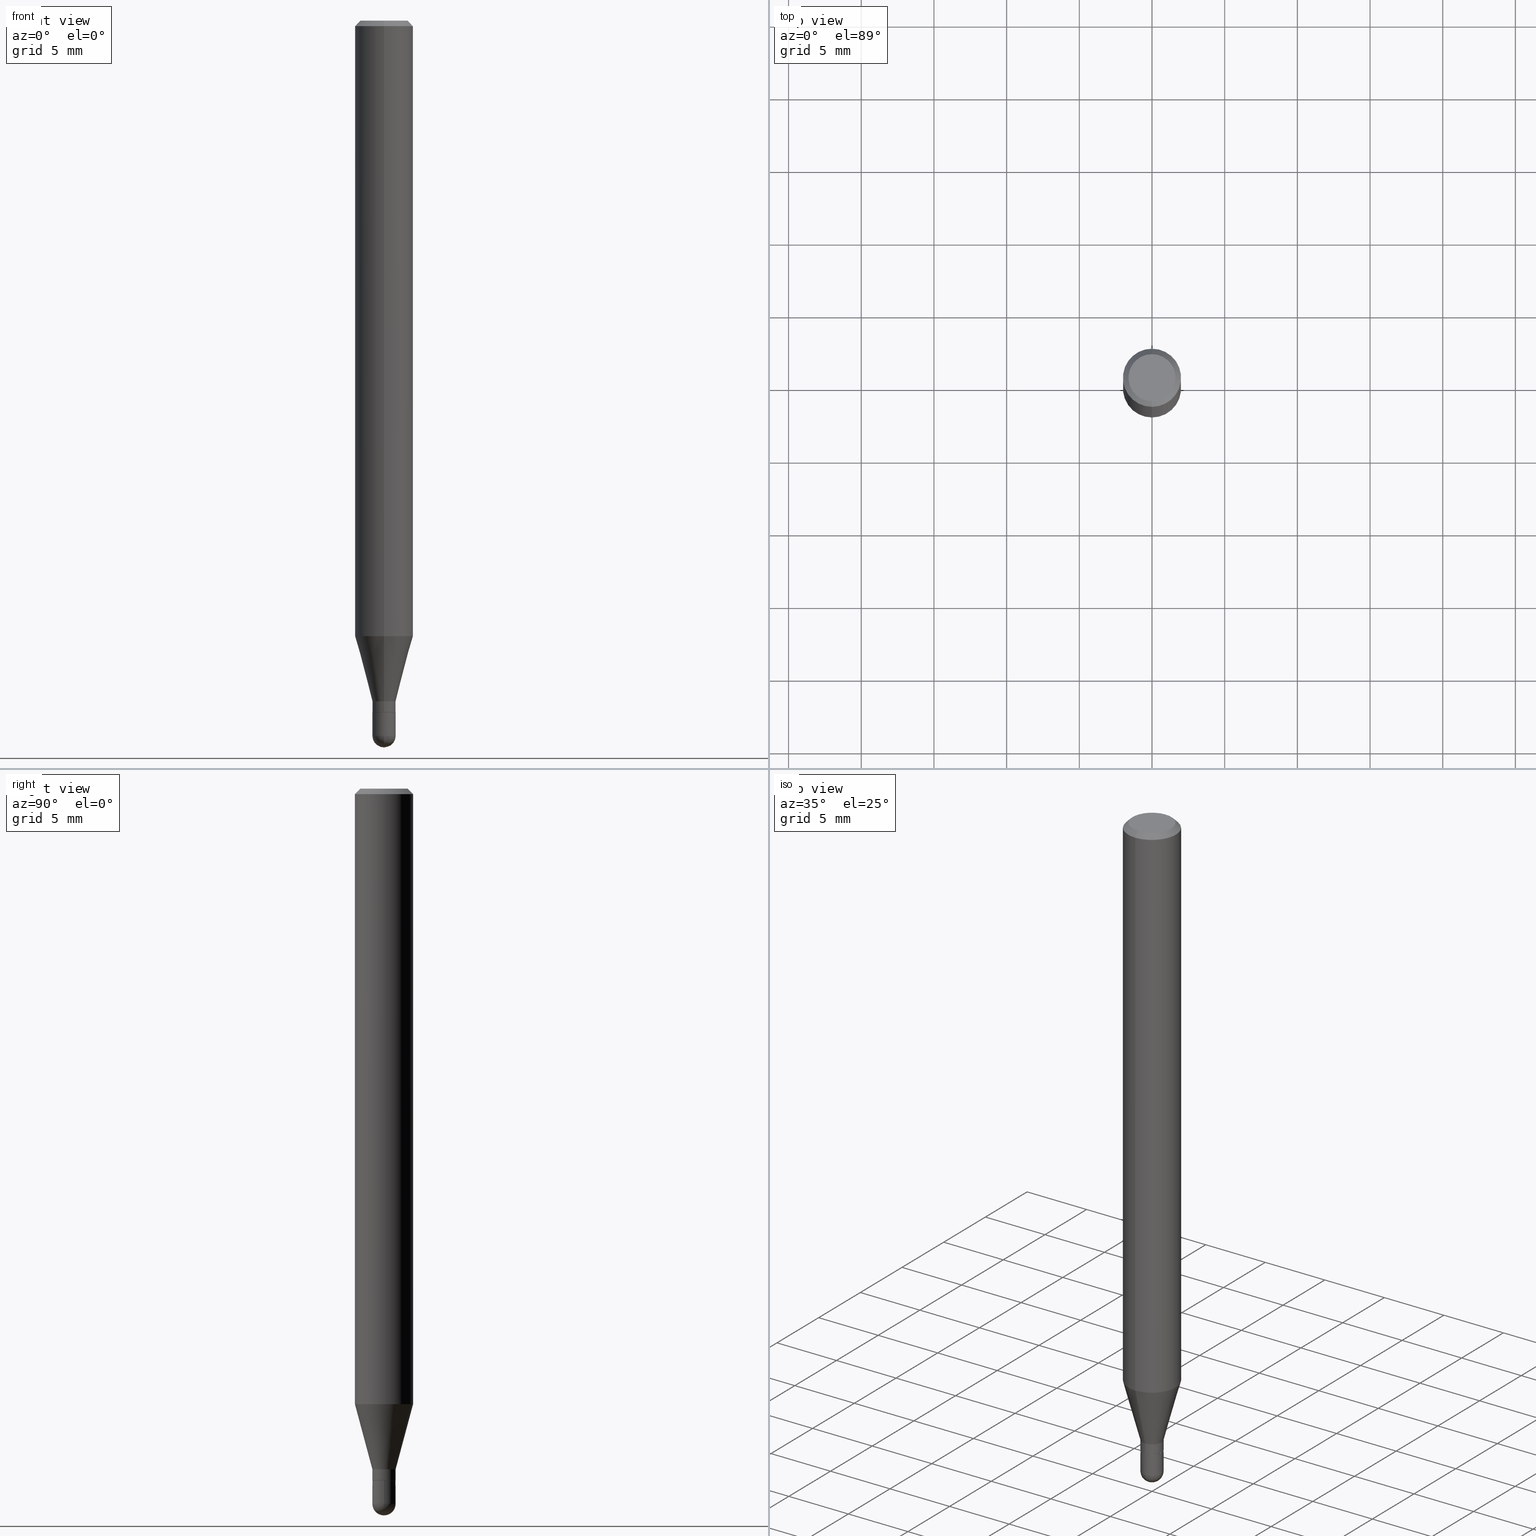
[diagram: canonical four-view strip — front | top / right | iso, engineering-drawing reading convention]
A machine part, canonical four-view strip (front | top / right | iso — engineering-drawing reading convention). The complete STEP part file that produces these views, byte-faithful:
ISO-10303-21;
HEADER;
FILE_DESCRIPTION (( 'STEP AP203' ),
    '1' );
FILE_NAME ('02037.STEP',
    '2024-03-07T19:58:29',
    ( '' ),
    ( '' ),
    'SwSTEP 2.0',
    'SolidWorks 2023',
    '' );
FILE_SCHEMA (( 'CONFIG_CONTROL_DESIGN' ));
ENDSEC;

DATA;
#1 = EDGE_LOOP ( 'NONE', ( #271, #433, #100, #273 ) ) ;
#2 = CARTESIAN_POINT ( 'NONE',  ( 3.668224304670922481E-31, -5.237191798460791690E-17, -0.01499999999999976526 ) ) ;
#3 = EDGE_CURVE ( 'NONE', #469, #424, #43, .T. ) ;
#4 = DIRECTION ( 'NONE',  ( -2.445482869780653605E-29, 3.491461198973915131E-15, 1.000000000000000000 ) ) ;
#5 = ORIENTED_EDGE ( 'NONE', *, *, #177, .F. ) ;
#6 = PERSON_AND_ORGANIZATION ( #499, #284 ) ;
#7 = CIRCLE ( 'NONE', #15, 0.03150000000000000716 ) ;
#8 = CARTESIAN_POINT ( 'NONE',  ( 0.000000000000000000, 0.000000000000000000, 0.000000000000000000 ) ) ;
#9 = AXIS2_PLACEMENT_3D ( 'NONE', #58, #328, #450 ) ;
#10 = VERTEX_POINT ( 'NONE', #45 ) ;
#11 = CARTESIAN_POINT ( 'NONE',  ( 3.668224304670922481E-31, -5.237191798460791690E-17, -0.01499999999999976526 ) ) ;
#12 = PERSON_AND_ORGANIZATION ( #499, #284 ) ;
#13 = EDGE_LOOP ( 'NONE', ( #353, #78, #488, #504 ) ) ;
#14 = CARTESIAN_POINT ( 'NONE',  ( 2.238209617644760322E-16, 0.03149999999999327643, -1.873500000000000165 ) ) ;
#15 = AXIS2_PLACEMENT_3D ( 'NONE', #192, #356, #94 ) ;
#16 = CONICAL_SURFACE ( 'NONE', #266, 0.07875000000000000056, 0.7853981633974483900 ) ;
#17 = ADVANCED_FACE ( 'NONE', ( #453 ), #133, .T. ) ;
#18 = DIRECTION ( 'NONE',  ( -6.982962677686264344E-15, -1.000000000000000000, 3.491461198973915131E-15 ) ) ;
#19 = CARTESIAN_POINT ( 'NONE',  ( 4.508247670440634638E-29, -6.436508720308413428E-15, -1.843500000000000139 ) ) ;
#20 = AXIS2_PLACEMENT_3D ( 'NONE', #430, #278, #230 ) ;
#21 = EDGE_CURVE ( 'NONE', #390, #476, #501, .T. ) ;
#22 = DATE_TIME_ROLE ( 'creation_date' ) ;
#23 = LINE ( 'NONE', #313, #472 ) ;
#24 = DIRECTION ( 'NONE',  ( -6.982962677686265922E-15, -1.000000000000000000, 0.000000000000000000 ) ) ;
#25 = EDGE_CURVE ( 'NONE', #89, #86, #146, .T. ) ;
#26 = EDGE_LOOP ( 'NONE', ( #269, #357, #127, #355 ) ) ;
#27 = DIRECTION ( 'NONE',  ( -6.982962677686264344E-15, -1.000000000000000000, 3.469013325287953293E-15 ) ) ;
#28 = VECTOR ( 'NONE', #204, 39.37007874015748143 ) ;
#29 = EDGE_LOOP ( 'NONE', ( #174, #75, #92, #327 ) ) ;
#30 = CALENDAR_DATE ( 2024, 7, 3 ) ;
#31 = FACE_OUTER_BOUND ( 'NONE', #224, .T. ) ;
#32 = ORIENTED_EDGE ( 'NONE', *, *, #50, .F. ) ;
#33 = CARTESIAN_POINT ( 'NONE',  ( 3.916866830877977794E-16, 0.03149999999999348460, -1.843500000000000139 ) ) ;
#34 = ORIENTED_EDGE ( 'NONE', *, *, #164, .F. ) ;
#35 = PERSON_AND_ORGANIZATION_ROLE ( 'design_supplier' ) ;
#36 = DIRECTION ( 'NONE',  ( -6.982962677686265922E-15, -1.000000000000000000, 0.000000000000000000 ) ) ;
#37 = DIRECTION ( 'NONE',  ( -6.982962677686265922E-15, -1.000000000000000000, 0.000000000000000000 ) ) ;
#38 = AXIS2_PLACEMENT_3D ( 'NONE', #253, #54, #374 ) ;
#39 = LOCAL_TIME ( 14, 58, 29.00000000000000000, #81 ) ;
#40 = ORIENTED_EDGE ( 'NONE', *, *, #25, .F. ) ;
#41 = DIRECTION ( 'NONE',  ( -4.937700262164674260E-15, -0.7071067811865632269, 0.7071067811865319186 ) ) ;
#42 = EDGE_CURVE ( 'NONE', #287, #86, #72, .T. ) ;
#43 = LINE ( 'NONE', #403, #405 ) ;
#44 = CARTESIAN_POINT ( 'NONE',  ( 4.451638707024993845E-16, 0.06375000000000000111, -1.050321514364470136E-16 ) ) ;
#45 = CARTESIAN_POINT ( 'NONE',  ( -2.199633243470717816E-16, -0.03150000000000636319, -1.843500000000000139 ) ) ;
#46 = APPROVAL_DATE_TIME ( #257, #431 ) ;
#47 = PERSON_AND_ORGANIZATION_ROLE ( 'creator' ) ;
#48 = APPLICATION_CONTEXT ( 'configuration controlled 3d designs of mechanical parts and assemblies' ) ;
#49 = ADVANCED_FACE ( 'NONE', ( #255 ), #222, .T. ) ;
#50 = EDGE_CURVE ( 'NONE', #10, #229, #167, .T. ) ;
#51 = VECTOR ( 'NONE', #41, 39.37007874015748143 ) ;
#52 = CARTESIAN_POINT ( 'NONE',  ( 2.199633243471642015E-16, 0.03149999999999315153, -1.937000000000000055 ) ) ;
#53 = AXIS2_PLACEMENT_3D ( 'NONE', #160, #400, #131 ) ;
#54 = DIRECTION ( 'NONE',  ( -2.445482869780653605E-29, 3.491461198973915131E-15, 1.000000000000000000 ) ) ;
#55 = COORDINATED_UNIVERSAL_TIME_OFFSET ( 5, 0, .BEHIND. ) ;
#56 = ORIENTED_EDGE ( 'NONE', *, *, #288, .T. ) ;
#57 = SHAPE_DEFINITION_REPRESENTATION ( #151, #322 ) ;
#58 = CARTESIAN_POINT ( 'NONE',  ( 0.000000000000000000, 0.000000000000000000, 0.000000000000000000 ) ) ;
#59 = DIRECTION ( 'NONE',  ( 6.982962677686264344E-15, 1.000000000000000000, -3.496114991891765576E-15 ) ) ;
#60 = DIRECTION ( 'NONE',  ( 1.839019923739601104E-15, 0.2588190451025250693, 0.9659258262890670910 ) ) ;
#61 = CIRCLE ( 'NONE', #141, 0.06375000000000000111 ) ;
#62 = CIRCLE ( 'NONE', #397, 0.03149999999999992389 ) ;
#63 = EDGE_CURVE ( 'NONE', #467, #469, #132, .T. ) ;
#64 = CALENDAR_DATE ( 2024, 7, 3 ) ;
#65 = CARTESIAN_POINT ( 'NONE',  ( 0.000000000000000000, 0.000000000000000000, 0.000000000000000000 ) ) ;
#66 = DIRECTION ( 'NONE',  ( 2.445482869780653605E-29, -3.491461198973915131E-15, -1.000000000000000000 ) ) ;
#67 = DIRECTION ( 'NONE',  ( -6.982962677686265922E-15, -1.000000000000000000, 0.000000000000000000 ) ) ;
#68 = FACE_OUTER_BOUND ( 'NONE', #506, .T. ) ;
#69 = EDGE_CURVE ( 'NONE', #508, #139, #333, .T. ) ;
#70 = EDGE_LOOP ( 'NONE', ( #437, #187, #227, #394 ) ) ;
#71 = DIRECTION ( 'NONE',  ( -2.445482869780653605E-29, 3.491461198973915131E-15, 1.000000000000000000 ) ) ;
#72 = CIRCLE ( 'NONE', #302, 0.03150000000000000716 ) ;
#73 =( GEOMETRIC_REPRESENTATION_CONTEXT ( 3 ) GLOBAL_UNCERTAINTY_ASSIGNED_CONTEXT ( ( #347 ) ) GLOBAL_UNIT_ASSIGNED_CONTEXT ( ( #214, #259, #292 ) ) REPRESENTATION_CONTEXT ( 'NONE', 'WORKASPACE' ) );
#74 = FACE_OUTER_BOUND ( 'NONE', #1, .T. ) ;
#75 = ORIENTED_EDGE ( 'NONE', *, *, #423, .T. ) ;
#76 = ADVANCED_FACE ( 'NONE', ( #212 ), #283, .T. ) ;
#77 = DIRECTION ( 'NONE',  ( 4.937700262164548042E-15, 0.7071067811865451302, -0.7071067811865499042 ) ) ;
#78 = ORIENTED_EDGE ( 'NONE', *, *, #118, .T. ) ;
#79 = CARTESIAN_POINT ( 'NONE',  ( -0.03150000000000001410, -6.429196729401182217E-15, -1.937000000000000055 ) ) ;
#80 = ORIENTED_EDGE ( 'NONE', *, *, #69, .T. ) ;
#81 = COORDINATED_UNIVERSAL_TIME_OFFSET ( 5, 0, .BEHIND. ) ;
#82 = DIRECTION ( 'NONE',  ( 1.000000000000000000, -6.982962677686255667E-15, 0.000000000000000000 ) ) ;
#83 = CC_DESIGN_DATE_AND_TIME_ASSIGNMENT ( #340, #22, ( #337 ) ) ;
#84 = ADVANCED_FACE ( 'NONE', ( #74 ), #416, .T. ) ;
#85 = AXIS2_PLACEMENT_3D ( 'NONE', #240, #117, #391 ) ;
#86 = VERTEX_POINT ( 'NONE', #339 ) ;
#87 = SECURITY_CLASSIFICATION_LEVEL ( 'unclassified' ) ;
#88 = LINE ( 'NONE', #474, #440 ) ;
#89 = VERTEX_POINT ( 'NONE', #220 ) ;
#90 = DIRECTION ( 'NONE',  ( -2.445482869780653605E-29, 3.491461198973915131E-15, 1.000000000000000000 ) ) ;
#91 = ADVANCED_FACE ( 'NONE', ( #68 ), #418, .T. ) ;
#92 = ORIENTED_EDGE ( 'NONE', *, *, #352, .T. ) ;
#93 = ADVANCED_FACE ( 'NONE', ( #199 ), #497, .T. ) ;
#94 = DIRECTION ( 'NONE',  ( 1.000000000000000000, -6.982962677686254878E-15, 0.000000000000000000 ) ) ;
#95 = AXIS2_PLACEMENT_3D ( 'NONE', #19, #71, #67 ) ;
#96 = VERTEX_POINT ( 'NONE', #420 ) ;
#97 = PLANE ( 'NONE',  #388 ) ;
#98 = VERTEX_POINT ( 'NONE', #111 ) ;
#99 = COORDINATED_UNIVERSAL_TIME_OFFSET ( 5, 0, .BEHIND. ) ;
#100 = ORIENTED_EDGE ( 'NONE', *, *, #256, .F. ) ;
#101 = DIRECTION ( 'NONE',  ( 1.000000000000000000, -6.982962677686254878E-15, 0.000000000000000000 ) ) ;
#102 = AXIS2_PLACEMENT_3D ( 'NONE', #178, #218, #299 ) ;
#103 = APPLICATION_PROTOCOL_DEFINITION ( 'international standard', 'config_control_design', 1994, #290 ) ;
#104 = DIRECTION ( 'NONE',  ( 6.982962677686265922E-15, 1.000000000000000000, 0.000000000000000000 ) ) ;
#105 = CARTESIAN_POINT ( 'NONE',  ( -2.164718430082284046E-16, -0.03100000000000654315, -1.874000000000000110 ) ) ;
#106 = CONICAL_SURFACE ( 'NONE', #95, 0.03149999999999992389, 0.2617993877991502960 ) ;
#107 = CYLINDRICAL_SURFACE ( 'NONE', #241, 0.03150000000000000716 ) ;
#108 = DIRECTION ( 'NONE',  ( -2.445482869780653605E-29, 3.491461198973915131E-15, 1.000000000000000000 ) ) ;
#109 = EDGE_CURVE ( 'NONE', #308, #229, #370, .T. ) ;
#110 = CARTESIAN_POINT ( 'NONE',  ( 5.595524044111199211E-16, 0.07874999999999994504, -0.01500000000000004108 ) ) ;
#111 = CARTESIAN_POINT ( 'NONE',  ( -0.03150000000000000022, -6.429196729401182217E-15, -1.874000000000000110 ) ) ;
#112 = CIRCLE ( 'NONE', #311, 0.03149999999999992389 ) ;
#113 = CIRCLE ( 'NONE', #296, 0.03150000000000000022 ) ;
#114 = ORIENTED_EDGE ( 'NONE', *, *, #471, .F. ) ;
#115 = DIRECTION ( 'NONE',  ( -2.445468806185136597E-29, 3.491481338843145583E-15, 1.000000000000000000 ) ) ;
#116 = VERTEX_POINT ( 'NONE', #188 ) ;
#117 = DIRECTION ( 'NONE',  ( -2.445482869780653605E-29, 3.491461198973915131E-15, 1.000000000000000000 ) ) ;
#118 = EDGE_CURVE ( 'NONE', #469, #467, #112, .T. ) ;
#119 = EDGE_LOOP ( 'NONE', ( #375, #362, #324, #114, #387 ) ) ;
#120 = APPROVAL_DATE_TIME ( #384, #358 ) ;
#121 = PLANE ( 'NONE',  #252 ) ;
#122 = VECTOR ( 'NONE', #108, 39.37007874015748143 ) ;
#123 = VECTOR ( 'NONE', #282, 39.37007874015748143 ) ;
#124 = ORIENTED_EDGE ( 'NONE', *, *, #423, .F. ) ;
#125 = DIRECTION ( 'NONE',  ( -6.982962677686264344E-15, -1.000000000000000000, 3.491461198973915131E-15 ) ) ;
#126 = EDGE_CURVE ( 'NONE', #229, #308, #260, .T. ) ;
#127 = ORIENTED_EDGE ( 'NONE', *, *, #378, .T. ) ;
#128 = FACE_OUTER_BOUND ( 'NONE', #408, .T. ) ;
#129 = CARTESIAN_POINT ( 'NONE',  ( 4.734179303769695037E-29, -6.766856990756487063E-15, -1.937000000000000055 ) ) ;
#130 = CALENDAR_DATE ( 2024, 7, 3 ) ;
#131 = DIRECTION ( 'NONE',  ( -6.982962677686264344E-15, -1.000000000000000000, 3.491461198973915131E-15 ) ) ;
#132 = CIRCLE ( 'NONE', #502, 0.03149999999999992389 ) ;
#133 = SPHERICAL_SURFACE ( 'NONE', #359, 0.03149999999999982675 ) ;
#134 = APPROVAL_STATUS ( 'not_yet_approved' ) ;
#135 = VERTEX_POINT ( 'NONE', #144 ) ;
#136 = CARTESIAN_POINT ( 'NONE',  ( 2.238209617644760322E-16, 0.03149999999999348460, -1.843500000000000139 ) ) ;
#137 = CARTESIAN_POINT ( 'NONE',  ( 4.734179303769695037E-29, -6.766856990756487063E-15, -1.937000000000000055 ) ) ;
#138 = APPROVAL_ROLE ( '' ) ;
#139 = VERTEX_POINT ( 'NONE', #415 ) ;
#140 = DATE_TIME_ROLE ( 'classification_date' ) ;
#141 = AXIS2_PLACEMENT_3D ( 'NONE', #377, #267, #18 ) ;
#142 = CARTESIAN_POINT ( 'NONE',  ( 0.03150000000000000716, -2.199633243471174122E-16, 1.535995684375720062E-30 ) ) ;
#143 = EDGE_CURVE ( 'NONE', #89, #476, #395, .T. ) ;
#144 = CARTESIAN_POINT ( 'NONE',  ( 0.03150000000000000022, -6.762999353339172249E-15, -1.874000000000000110 ) ) ;
#145 = ADVANCED_FACE ( 'NONE', ( #301 ), #458, .T. ) ;
#146 = CIRCLE ( 'NONE', #426, 0.03149999999999982675 ) ;
#147 = DIRECTION ( 'NONE',  ( -2.445468806185136597E-29, 3.491481338843145583E-15, 1.000000000000000000 ) ) ;
#148 = CC_DESIGN_APPROVAL ( #431, ( #503 ) ) ;
#149 = DIRECTION ( 'NONE',  ( -2.445482869780653605E-29, 3.491461198973915131E-15, 1.000000000000000000 ) ) ;
#150 = DIRECTION ( 'NONE',  ( 6.982962677686266711E-15, 1.000000000000000000, 0.000000000000000000 ) ) ;
#151 = PRODUCT_DEFINITION_SHAPE ( 'NONE', 'NONE',  #337 ) ;
#152 = CLOSED_SHELL ( 'NONE', ( #193, #17, #361, #436, #171 ) ) ;
#153 = DIRECTION ( 'NONE',  ( -6.982962677686265922E-15, -1.000000000000000000, 0.000000000000000000 ) ) ;
#154 = CIRCLE ( 'NONE', #168, 0.03150000000000000022 ) ;
#155 = EDGE_LOOP ( 'NONE', ( #34, #201, #398, #392 ) ) ;
#156 = DIRECTION ( 'NONE',  ( 5.024295867788190974E-15, 0.7071067811865681119, 0.7071067811865270336 ) ) ;
#157 = ORIENTED_EDGE ( 'NONE', *, *, #352, .F. ) ;
#158 = CYLINDRICAL_SURFACE ( 'NONE', #53, 0.07875000000000000056 ) ;
#159 = ORIENTED_EDGE ( 'NONE', *, *, #50, .T. ) ;
#160 = CARTESIAN_POINT ( 'NONE',  ( 0.000000000000000000, 0.000000000000000000, 0.000000000000000000 ) ) ;
#161 = AXIS2_PLACEMENT_3D ( 'NONE', #512, #280, #125 ) ;
#162 = EDGE_LOOP ( 'NONE', ( #242, #279 ) ) ;
#163 = CARTESIAN_POINT ( 'NONE',  ( 4.508247670440634638E-29, -6.436508720308413428E-15, -1.843500000000000139 ) ) ;
#164 = EDGE_CURVE ( 'NONE', #96, #478, #457, .T. ) ;
#165 = ORIENTED_EDGE ( 'NONE', *, *, #475, .T. ) ;
#166 = CARTESIAN_POINT ( 'NONE',  ( 0.03150000000000001410, -6.872981015512730918E-15, -1.937000000000000055 ) ) ;
#167 = LINE ( 'NONE', #329, #216 ) ;
#168 = AXIS2_PLACEMENT_3D ( 'NONE', #466, #115, #272 ) ;
#169 = LOCAL_TIME ( 14, 58, 29.00000000000000000, #99 ) ;
#170 = ORIENTED_EDGE ( 'NONE', *, *, #109, .F. ) ;
#171 = ADVANCED_FACE ( 'NONE', ( #228 ), #107, .T. ) ;
#172 = DIRECTION ( 'NONE',  ( -2.445482869780653605E-29, 3.491461198973915131E-15, 1.000000000000000000 ) ) ;
#173 = DIRECTION ( 'NONE',  ( -2.445468806185136597E-29, 3.491481338843145583E-15, 1.000000000000000000 ) ) ;
#174 = ORIENTED_EDGE ( 'NONE', *, *, #338, .F. ) ;
#175 = CARTESIAN_POINT ( 'NONE',  ( 3.668224304670922481E-31, -5.237191798460791690E-17, -0.01499999999999976526 ) ) ;
#176 = CYLINDRICAL_SURFACE ( 'NONE', #491, 0.03149999999999992389 ) ;
#177 = EDGE_CURVE ( 'NONE', #96, #116, #61, .T. ) ;
#178 = CARTESIAN_POINT ( 'NONE',  ( 0.000000000000000000, 0.000000000000000000, 0.000000000000000000 ) ) ;
#179 = CYLINDRICAL_SURFACE ( 'NONE', #376, 0.03150000000000000716 ) ;
#180 = AXIS2_PLACEMENT_3D ( 'NONE', #372, #285, #101 ) ;
#181 = AXIS2_PLACEMENT_3D ( 'NONE', #382, #221, #379 ) ;
#182 = APPROVAL_STATUS ( 'not_yet_approved' ) ;
#183 = CARTESIAN_POINT ( 'NONE',  ( -5.499083108677528180E-16, -0.07875000000000582923, -1.667160599342370819 ) ) ;
#184 = MANIFOLD_SOLID_BREP ( 'Body-Move/Copy2[2]', #293 ) ;
#185 = APPROVAL_ROLE ( '' ) ;
#186 = DIRECTION ( 'NONE',  ( -6.982962677686264344E-15, -1.000000000000000000, 3.496114991891765576E-15 ) ) ;
#187 = ORIENTED_EDGE ( 'NONE', *, *, #3, .T. ) ;
#188 = CARTESIAN_POINT ( 'NONE',  ( 4.975360907851465623E-16, 0.06375000000000000111, 1.251634856169309859E-17 ) ) ;
#189 = AXIS2_PLACEMENT_3D ( 'NONE', #385, #262, #27 ) ;
#190 = CC_DESIGN_PERSON_AND_ORGANIZATION_ASSIGNMENT ( #429, #35, ( #482 ) ) ;
#191 = ORIENTED_EDGE ( 'NONE', *, *, #471, .T. ) ;
#192 = CARTESIAN_POINT ( 'NONE',  ( 4.736873077580609915E-29, -6.762999353339173038E-15, -1.937000000000000055 ) ) ;
#193 = ADVANCED_FACE ( 'NONE', ( #460 ), #179, .T. ) ;
#194 = ORIENTED_EDGE ( 'NONE', *, *, #256, .T. ) ;
#195 = DIRECTION ( 'NONE',  ( -2.445482869780653325E-29, 3.491461198973915131E-15, 1.000000000000000000 ) ) ;
#196 = MANIFOLD_SOLID_BREP ( 'Body-Move/Copy2[1]', #152 ) ;
#197 = EDGE_LOOP ( 'NONE', ( #5, #209, #194, #446 ) ) ;
#198 = LINE ( 'NONE', #275, #51 ) ;
#199 = FACE_OUTER_BOUND ( 'NONE', #70, .T. ) ;
#200 = LOCAL_TIME ( 14, 58, 29.00000000000000000, #335 ) ;
#201 = ORIENTED_EDGE ( 'NONE', *, *, #307, .F. ) ;
#202 = DIRECTION ( 'NONE',  ( -6.982962677686265922E-15, -1.000000000000000000, 0.000000000000000000 ) ) ;
#203 = DIRECTION ( 'NONE',  ( -7.105427357601001859E-15, -1.000000000000000000, 0.000000000000000000 ) ) ;
#204 = DIRECTION ( 'NONE',  ( -2.445482869780653605E-29, 3.491461198973915131E-15, 1.000000000000000000 ) ) ;
#205 = EDGE_CURVE ( 'NONE', #308, #233, #500, .T. ) ;
#206 = CARTESIAN_POINT ( 'NONE',  ( 4.582834897968944286E-29, -6.542998286877117730E-15, -1.874000000000000110 ) ) ;
#207 = CARTESIAN_POINT ( 'NONE',  ( -2.199633243470717816E-16, -0.03150000000000657135, -1.873500000000000165 ) ) ;
#208 = AXIS2_PLACEMENT_3D ( 'NONE', #206, #4, #245 ) ;
#209 = ORIENTED_EDGE ( 'NONE', *, *, #164, .T. ) ;
#210 = DIRECTION ( 'NONE',  ( 2.445482869780653325E-29, -3.491461198973915131E-15, -1.000000000000000000 ) ) ;
#211 = CC_DESIGN_PERSON_AND_ORGANIZATION_ASSIGNMENT ( #402, #47, ( #337 ) ) ;
#212 = FACE_OUTER_BOUND ( 'NONE', #197, .T. ) ;
#213 = COORDINATED_UNIVERSAL_TIME_OFFSET ( 5, 0, .BEHIND. ) ;
#214 =( CONVERSION_BASED_UNIT ( 'INCH', #336 ) LENGTH_UNIT ( ) NAMED_UNIT ( #461 ) );
#215 = DIRECTION ( 'NONE',  ( -2.445482869780653605E-29, 3.491461198973915131E-15, 1.000000000000000000 ) ) ;
#216 = VECTOR ( 'NONE', #486, 39.37007874015748143 ) ;
#217 = APPROVAL_PERSON_ORGANIZATION ( #481, #300, #447 ) ;
#218 = DIRECTION ( 'NONE',  ( -2.445482869780653605E-29, 3.491461198973915131E-15, 1.000000000000000000 ) ) ;
#219 = DIRECTION ( 'NONE',  ( 1.000000000000000000, -6.982962677686265133E-15, 4.876176775795935793E-29 ) ) ;
#220 = CARTESIAN_POINT ( 'NONE',  ( 4.812558458069983555E-29, -6.874909834221388325E-15, -1.968500000000000139 ) ) ;
#221 = DIRECTION ( 'NONE',  ( -2.445468806185136597E-29, 3.491481338843145583E-15, 1.000000000000000000 ) ) ;
#222 = CONICAL_SURFACE ( 'NONE', #208, 0.03099999999999999978, 0.7853981633974739252 ) ;
#223 = DIRECTION ( 'NONE',  ( 1.000000000000000000, -6.982962677686265922E-15, 4.883557194083112340E-29 ) ) ;
#224 = EDGE_LOOP ( 'NONE', ( #297, #56 ) ) ;
#225 = CARTESIAN_POINT ( 'NONE',  ( -5.402642173245076924E-16, -0.07875000000000004219, -0.01499999999999948944 ) ) ;
#226 = CC_DESIGN_PERSON_AND_ORGANIZATION_ASSIGNMENT ( #274, #434, ( #482 ) ) ;
#227 = ORIENTED_EDGE ( 'NONE', *, *, #294, .F. ) ;
#228 = FACE_OUTER_BOUND ( 'NONE', #349, .T. ) ;
#229 = VERTEX_POINT ( 'NONE', #183 ) ;
#230 = DIRECTION ( 'NONE',  ( -1.000000000000000000, 6.982962677686265922E-15, -4.876176775795935793E-29 ) ) ;
#231 = CIRCLE ( 'NONE', #161, 0.06375000000000000111 ) ;
#232 = ADVANCED_FACE ( 'NONE', ( #345 ), #106, .T. ) ;
#233 = VERTEX_POINT ( 'NONE', #110 ) ;
#234 = CARTESIAN_POINT ( 'NONE',  ( 4.582808542790945516E-29, -6.543036028992054911E-15, -1.874000000000000110 ) ) ;
#235 = EDGE_CURVE ( 'NONE', #86, #390, #380, .T. ) ;
#236 = DIRECTION ( 'NONE',  ( -2.445482869780653605E-29, 3.491461198973915131E-15, 1.000000000000000000 ) ) ;
#237 = ORIENTED_EDGE ( 'NONE', *, *, #143, .T. ) ;
#238 = CARTESIAN_POINT ( 'NONE',  ( -5.499083108677933457E-16, -0.07875000000000000056, 2.749525694191958254E-16 ) ) ;
#239 = ORIENTED_EDGE ( 'NONE', *, *, #126, .F. ) ;
#240 = CARTESIAN_POINT ( 'NONE',  ( 4.582834897968944286E-29, -6.542998286877117730E-15, -1.874000000000000110 ) ) ;
#241 = AXIS2_PLACEMENT_3D ( 'NONE', #65, #147, #219 ) ;
#242 = ORIENTED_EDGE ( 'NONE', *, *, #307, .T. ) ;
#243 = DIRECTION ( 'NONE',  ( -2.445482869780653605E-29, 3.491461198973915131E-15, 1.000000000000000000 ) ) ;
#244 = EDGE_CURVE ( 'NONE', #116, #233, #23, .T. ) ;
#245 = DIRECTION ( 'NONE',  ( -6.982962677686265922E-15, -1.000000000000000000, 0.000000000000000000 ) ) ;
#246 = APPROVAL_STATUS ( 'not_yet_approved' ) ;
#247 = CC_DESIGN_PERSON_AND_ORGANIZATION_ASSIGNMENT ( #6, #411, ( #503 ) ) ;
#248 = APPROVAL_DATE_TIME ( #444, #300 ) ;
#249 = ORIENTED_EDGE ( 'NONE', *, *, #338, .T. ) ;
#250 = LINE ( 'NONE', #136, #428 ) ;
#251 = PRODUCT_RELATED_PRODUCT_CATEGORY ( 'detail', '', ( #310 ) ) ;
#252 = AXIS2_PLACEMENT_3D ( 'NONE', #360, #195, #425 ) ;
#253 = CARTESIAN_POINT ( 'NONE',  ( 4.582834897968944286E-29, -6.542998286877117730E-15, -1.874000000000000110 ) ) ;
#254 = DIRECTION ( 'NONE',  ( 6.982962677686264344E-15, 1.000000000000000000, -3.496114991891765576E-15 ) ) ;
#255 = FACE_OUTER_BOUND ( 'NONE', #29, .T. ) ;
#256 = EDGE_CURVE ( 'NONE', #478, #233, #326, .T. ) ;
#257 = DATE_AND_TIME ( #399, #312 ) ;
#258 =( LENGTH_UNIT ( ) NAMED_UNIT ( * ) SI_UNIT ( $, .METRE. ) );
#259 =( NAMED_UNIT ( * ) PLANE_ANGLE_UNIT ( ) SI_UNIT ( $, .RADIAN. ) );
#260 = CIRCLE ( 'NONE', #265, 0.07875000000000000056 ) ;
#261 = APPROVAL_PERSON_ORGANIZATION ( #304, #358, #185 ) ;
#262 = DIRECTION ( 'NONE',  ( -2.445482869780653605E-29, 3.491461198973915131E-15, 1.000000000000000000 ) ) ;
#263 = CARTESIAN_POINT ( 'NONE',  ( 0.000000000000000000, 0.000000000000000000, 0.000000000000000000 ) ) ;
#264 = CARTESIAN_POINT ( 'NONE',  ( 4.581612156534054516E-29, -6.541252556277631111E-15, -1.873500000000000165 ) ) ;
#265 = AXIS2_PLACEMENT_3D ( 'NONE', #351, #462, #494 ) ;
#266 = AXIS2_PLACEMENT_3D ( 'NONE', #175, #298, #254 ) ;
#267 = DIRECTION ( 'NONE',  ( -2.445482869780653605E-29, 3.491461198973915131E-15, 1.000000000000000000 ) ) ;
#268 = AXIS2_PLACEMENT_3D ( 'NONE', #363, #389, #509 ) ;
#269 = ORIENTED_EDGE ( 'NONE', *, *, #205, .F. ) ;
#270 = CARTESIAN_POINT ( 'NONE',  ( 4.734179303769695037E-29, -6.766856990756487063E-15, -1.937000000000000055 ) ) ;
#271 = ORIENTED_EDGE ( 'NONE', *, *, #126, .T. ) ;
#272 = DIRECTION ( 'NONE',  ( 1.000000000000000000, -6.982962677686255667E-15, 0.000000000000000000 ) ) ;
#273 = ORIENTED_EDGE ( 'NONE', *, *, #378, .F. ) ;
#274 = PERSON_AND_ORGANIZATION ( #499, #284 ) ;
#275 = CARTESIAN_POINT ( 'NONE',  ( -2.164718430082284046E-16, -0.03100000000000654315, -1.874000000000000110 ) ) ;
#276 = CIRCLE ( 'NONE', #348, 0.03149999999999992389 ) ;
#277 = ORIENTED_EDGE ( 'NONE', *, *, #25, .T. ) ;
#278 = DIRECTION ( 'NONE',  ( 2.438088387897960049E-29, -3.491481338843145188E-15, -1.000000000000000000 ) ) ;
#279 = ORIENTED_EDGE ( 'NONE', *, *, #177, .T. ) ;
#280 = DIRECTION ( 'NONE',  ( -2.445482869780653605E-29, 3.491461198973915131E-15, 1.000000000000000000 ) ) ;
#281 = DIRECTION ( 'NONE',  ( -1.000000000000000000, 7.105427357601001070E-15, -4.926315508542082329E-29 ) ) ;
#282 = DIRECTION ( 'NONE',  ( -2.445482869780653605E-29, 3.491461198973915131E-15, 1.000000000000000000 ) ) ;
#283 = CONICAL_SURFACE ( 'NONE', #412, 0.07875000000000000056, 0.7853981633974483900 ) ;
#284 = ORGANIZATION ( 'UNSPECIFIED', 'UNSPECIFIED', '' ) ;
#285 = DIRECTION ( 'NONE',  ( -2.445468806185136597E-29, 3.491481338843145583E-15, 1.000000000000000000 ) ) ;
#286 = CALENDAR_DATE ( 2024, 7, 3 ) ;
#287 = VERTEX_POINT ( 'NONE', #79 ) ;
#288 = EDGE_CURVE ( 'NONE', #98, #135, #154, .T. ) ;
#289 = EDGE_CURVE ( 'NONE', #287, #98, #319, .T. ) ;
#290 = APPLICATION_CONTEXT ( 'configuration controlled 3d designs of mechanical parts and assemblies' ) ;
#291 = DIRECTION ( 'NONE',  ( -1.000000000000000000, 6.982962677686265922E-15, -4.883557194083112340E-29 ) ) ;
#292 =( NAMED_UNIT ( * ) SI_UNIT ( $, .STERADIAN. ) SOLID_ANGLE_UNIT ( ) );
#293 = CLOSED_SHELL ( 'NONE', ( #93, #145, #76, #84, #232, #91, #445, #492, #455, #331, #49, #498 ) ) ;
#294 = EDGE_CURVE ( 'NONE', #10, #424, #276, .T. ) ;
#295 = AXIS2_PLACEMENT_3D ( 'NONE', #2, #90, #468 ) ;
#296 = AXIS2_PLACEMENT_3D ( 'NONE', #234, #477, #82 ) ;
#297 = ORIENTED_EDGE ( 'NONE', *, *, #414, .T. ) ;
#298 = DIRECTION ( 'NONE',  ( 2.445482869780653605E-29, -3.491461198973915131E-15, -1.000000000000000000 ) ) ;
#299 = DIRECTION ( 'NONE',  ( -6.982962677686264344E-15, -1.000000000000000000, 3.491461198973915131E-15 ) ) ;
#300 = APPROVAL ( #134, 'UNSPECIFIED' ) ;
#301 = FACE_OUTER_BOUND ( 'NONE', #421, .T. ) ;
#302 = AXIS2_PLACEMENT_3D ( 'NONE', #367, #173, #365 ) ;
#303 = CC_DESIGN_APPROVAL ( #358, ( #482 ) ) ;
#304 = PERSON_AND_ORGANIZATION ( #499, #284 ) ;
#305 = DIRECTION ( 'NONE',  ( 1.000000000000000000, -6.982962677686265133E-15, 4.876176775795935793E-29 ) ) ;
#306 = CARTESIAN_POINT ( 'NONE',  ( 0.000000000000000000, 0.000000000000000000, 0.000000000000000000 ) ) ;
#307 = EDGE_CURVE ( 'NONE', #116, #96, #231, .T. ) ;
#308 = VERTEX_POINT ( 'NONE', #321 ) ;
#309 = CARTESIAN_POINT ( 'NONE',  ( 5.595524044110787031E-16, 0.07875000000000000056, -2.749525694191958254E-16 ) ) ;
#310 = PRODUCT ( '02037', '02037', '', ( #366 ) ) ;
#311 = AXIS2_PLACEMENT_3D ( 'NONE', #264, #417, #153 ) ;
#312 = LOCAL_TIME ( 14, 58, 29.00000000000000000, #213 ) ;
#313 = CARTESIAN_POINT ( 'NONE',  ( 5.499083108677937401E-16, 0.07874999999999994504, -0.01500000000000004108 ) ) ;
#314 = ORIENTED_EDGE ( 'NONE', *, *, #235, .F. ) ;
#315 = PLANE ( 'NONE',  #20 ) ;
#316 = ORIENTED_EDGE ( 'NONE', *, *, #21, .F. ) ;
#317 = CARTESIAN_POINT ( 'NONE',  ( -2.199633243471168452E-16, -0.03149999999999992389, 1.099810277676780713E-16 ) ) ;
#318 = EDGE_LOOP ( 'NONE', ( #465, #277, #480, #439 ) ) ;
#319 = LINE ( 'NONE', #507, #510 ) ;
#320 = ORIENTED_EDGE ( 'NONE', *, *, #410, .T. ) ;
#321 = CARTESIAN_POINT ( 'NONE',  ( 5.595524044111192308E-16, 0.07874999999999415801, -1.667160599342371263 ) ) ;
#322 = ADVANCED_BREP_SHAPE_REPRESENTATION ( '02037', ( #196, #184, #9 ), #73 ) ;
#323 = ORIENTED_EDGE ( 'NONE', *, *, #235, .T. ) ;
#324 = ORIENTED_EDGE ( 'NONE', *, *, #414, .F. ) ;
#325 = APPLICATION_PROTOCOL_DEFINITION ( 'international standard', 'config_control_design', 1994, #48 ) ;
#326 = CIRCLE ( 'NONE', #495, 0.07875000000000000056 ) ;
#327 = ORIENTED_EDGE ( 'NONE', *, *, #118, .F. ) ;
#328 = DIRECTION ( 'NONE',  ( 0.000000000000000000, 0.000000000000000000, 1.000000000000000000 ) ) ;
#329 = CARTESIAN_POINT ( 'NONE',  ( -2.199633243470717816E-16, -0.03150000000000636319, -1.843500000000000139 ) ) ;
#330 = CARTESIAN_POINT ( 'NONE',  ( -5.499083108677930499E-16, -0.07875000000000004219, -0.01499999999999948944 ) ) ;
#331 = ADVANCED_FACE ( 'NONE', ( #470 ), #121, .F. ) ;
#332 = ORIENTED_EDGE ( 'NONE', *, *, #294, .T. ) ;
#333 = CIRCLE ( 'NONE', #38, 0.03099999999999999978 ) ;
#334 = APPROVAL_PERSON_ORGANIZATION ( #368, #431, #138 ) ;
#335 = COORDINATED_UNIVERSAL_TIME_OFFSET ( 5, 0, .BEHIND. ) ;
#336 = LENGTH_MEASURE_WITH_UNIT ( LENGTH_MEASURE( 0.02539999999999999897 ), #258 );
#337 = PRODUCT_DEFINITION ( 'UNKNOWN', '', #482, #448 ) ;
#338 = EDGE_CURVE ( 'NONE', #139, #469, #88, .T. ) ;
#339 = CARTESIAN_POINT ( 'NONE',  ( -2.238209617643835875E-16, -0.03150000000000668238, -1.937000000000000055 ) ) ;
#340 = DATE_AND_TIME ( #64, #407 ) ;
#341 = DIRECTION ( 'NONE',  ( -2.445468806185136597E-29, 3.491481338843145583E-15, 1.000000000000000000 ) ) ;
#342 = AXIS2_PLACEMENT_3D ( 'NONE', #496, #149, #24 ) ;
#343 = DIRECTION ( 'NONE',  ( -2.445482869780653605E-29, 3.491461198973915131E-15, 1.000000000000000000 ) ) ;
#344 = EDGE_CURVE ( 'NONE', #476, #287, #7, .T. ) ;
#345 = FACE_OUTER_BOUND ( 'NONE', #419, .T. ) ;
#346 = CARTESIAN_POINT ( 'NONE',  ( 3.668224304670922481E-31, -5.237191798460791690E-17, -0.01499999999999976526 ) ) ;
#347 = UNCERTAINTY_MEASURE_WITH_UNIT (LENGTH_MEASURE( 1.000000000000000082E-05 ), #214, 'distance_accuracy_value', 'NONE');
#348 = AXIS2_PLACEMENT_3D ( 'NONE', #438, #393, #202 ) ;
#349 = EDGE_LOOP ( 'NONE', ( #381, #511, #323, #191, #409 ) ) ;
#350 = CC_DESIGN_SECURITY_CLASSIFICATION ( #503, ( #482 ) ) ;
#351 = CARTESIAN_POINT ( 'NONE',  ( 4.077012686865015865E-29, -5.820826545061986514E-15, -1.667160599342371041 ) ) ;
#352 = EDGE_CURVE ( 'NONE', #508, #467, #198, .T. ) ;
#353 = ORIENTED_EDGE ( 'NONE', *, *, #3, .F. ) ;
#354 = FACE_OUTER_BOUND ( 'NONE', #26, .T. ) ;
#355 = ORIENTED_EDGE ( 'NONE', *, *, #364, .F. ) ;
#356 = DIRECTION ( 'NONE',  ( -2.445468806185136597E-29, 3.491481338843145583E-15, 1.000000000000000000 ) ) ;
#357 = ORIENTED_EDGE ( 'NONE', *, *, #109, .T. ) ;
#358 = APPROVAL ( #182, 'UNSPECIFIED' ) ;
#359 = AXIS2_PLACEMENT_3D ( 'NONE', #137, #291, #104 ) ;
#360 = CARTESIAN_POINT ( 'NONE',  ( 4.582834897968944286E-29, -6.542998286877117730E-15, -1.874000000000000110 ) ) ;
#361 = ADVANCED_FACE ( 'NONE', ( #31 ), #315, .F. ) ;
#362 = ORIENTED_EDGE ( 'NONE', *, *, #289, .T. ) ;
#363 = CARTESIAN_POINT ( 'NONE',  ( 4.734179303769695037E-29, -6.766856990756487063E-15, -1.937000000000000055 ) ) ;
#364 = EDGE_CURVE ( 'NONE', #233, #478, #451, .T. ) ;
#365 = DIRECTION ( 'NONE',  ( 1.000000000000000000, -6.982962677686254878E-15, 0.000000000000000000 ) ) ;
#366 = MECHANICAL_CONTEXT ( 'NONE', #290, 'mechanical' ) ;
#367 = CARTESIAN_POINT ( 'NONE',  ( 4.736873077580609915E-29, -6.762999353339173038E-15, -1.937000000000000055 ) ) ;
#368 = PERSON_AND_ORGANIZATION ( #499, #284 ) ;
#369 = FACE_OUTER_BOUND ( 'NONE', #13, .T. ) ;
#370 = CIRCLE ( 'NONE', #189, 0.07875000000000000056 ) ;
#371 = CC_DESIGN_APPROVAL ( #300, ( #337 ) ) ;
#372 = CARTESIAN_POINT ( 'NONE',  ( 4.736873077580609915E-29, -6.762999353339173038E-15, -1.937000000000000055 ) ) ;
#373 = DIRECTION ( 'NONE',  ( -6.982962677686265922E-15, -1.000000000000000000, 3.491461198973915525E-15 ) ) ;
#374 = DIRECTION ( 'NONE',  ( -6.982962677686265922E-15, -1.000000000000000000, 0.000000000000000000 ) ) ;
#375 = ORIENTED_EDGE ( 'NONE', *, *, #344, .T. ) ;
#376 = AXIS2_PLACEMENT_3D ( 'NONE', #306, #341, #305 ) ;
#377 = CARTESIAN_POINT ( 'NONE',  ( -5.749256862277255526E-45, 8.208320534821828257E-31, 2.350969999962801875E-16 ) ) ;
#378 = EDGE_CURVE ( 'NONE', #229, #478, #479, .T. ) ;
#379 = DIRECTION ( 'NONE',  ( 1.000000000000000000, -6.982962677686254878E-15, 0.000000000000000000 ) ) ;
#380 = CIRCLE ( 'NONE', #181, 0.03150000000000000716 ) ;
#381 = ORIENTED_EDGE ( 'NONE', *, *, #289, .F. ) ;
#382 = CARTESIAN_POINT ( 'NONE',  ( 4.736873077580609915E-29, -6.762999353339173038E-15, -1.937000000000000055 ) ) ;
#383 = ORIENTED_EDGE ( 'NONE', *, *, #475, .F. ) ;
#384 = DATE_AND_TIME ( #30, #39 ) ;
#385 = CARTESIAN_POINT ( 'NONE',  ( 4.077012686865015865E-29, -5.820826545061986514E-15, -1.667160599342371041 ) ) ;
#386 = AXIS2_PLACEMENT_3D ( 'NONE', #270, #223, #150 ) ;
#387 = ORIENTED_EDGE ( 'NONE', *, *, #21, .T. ) ;
#388 = AXIS2_PLACEMENT_3D ( 'NONE', #44, #210, #456 ) ;
#389 = DIRECTION ( 'NONE',  ( -1.000000000000000000, 6.982962677686265922E-15, -4.883557194083112340E-29 ) ) ;
#390 = VERTEX_POINT ( 'NONE', #166 ) ;
#391 = DIRECTION ( 'NONE',  ( -6.982962677686265922E-15, -1.000000000000000000, 0.000000000000000000 ) ) ;
#392 = ORIENTED_EDGE ( 'NONE', *, *, #364, .T. ) ;
#393 = DIRECTION ( 'NONE',  ( -2.445482869780653605E-29, 3.491461198973915131E-15, 1.000000000000000000 ) ) ;
#394 = ORIENTED_EDGE ( 'NONE', *, *, #452, .F. ) ;
#395 = CIRCLE ( 'NONE', #386, 0.03149999999999982675 ) ;
#396 = SPHERICAL_SURFACE ( 'NONE', #268, 0.03149999999999982675 ) ;
#397 = AXIS2_PLACEMENT_3D ( 'NONE', #163, #243, #36 ) ;
#398 = ORIENTED_EDGE ( 'NONE', *, *, #244, .T. ) ;
#399 = CALENDAR_DATE ( 2024, 7, 3 ) ;
#400 = DIRECTION ( 'NONE',  ( -2.445482869780653605E-29, 3.491461198973915131E-15, 1.000000000000000000 ) ) ;
#401 = DIRECTION ( 'NONE',  ( -2.445482869780653605E-29, 3.491461198973915131E-15, 1.000000000000000000 ) ) ;
#402 = PERSON_AND_ORGANIZATION ( #499, #284 ) ;
#403 = CARTESIAN_POINT ( 'NONE',  ( 2.238209617644309685E-16, 0.03149999999999992389, -1.099810277676780713E-16 ) ) ;
#404 = DATE_AND_TIME ( #130, #200 ) ;
#405 = VECTOR ( 'NONE', #215, 39.37007874015748143 ) ;
#406 = AXIS2_PLACEMENT_3D ( 'NONE', #432, #236, #37 ) ;
#407 = LOCAL_TIME ( 14, 58, 29.00000000000000000, #55 ) ;
#408 = EDGE_LOOP ( 'NONE', ( #40, #237, #316, #314 ) ) ;
#409 = ORIENTED_EDGE ( 'NONE', *, *, #288, .F. ) ;
#410 = EDGE_CURVE ( 'NONE', #424, #10, #62, .T. ) ;
#411 = PERSON_AND_ORGANIZATION_ROLE ( 'classification_officer' ) ;
#412 = AXIS2_PLACEMENT_3D ( 'NONE', #11, #66, #59 ) ;
#413 = DIRECTION ( 'NONE',  ( -2.445482869780653605E-29, 3.491461198973915131E-15, 1.000000000000000000 ) ) ;
#414 = EDGE_CURVE ( 'NONE', #135, #98, #113, .T. ) ;
#415 = CARTESIAN_POINT ( 'NONE',  ( 2.220446049250768155E-16, 0.03099999999999345640, -1.874000000000000110 ) ) ;
#416 = CYLINDRICAL_SURFACE ( 'NONE', #102, 0.07875000000000000056 ) ;
#417 = DIRECTION ( 'NONE',  ( -2.445482869780653605E-29, 3.491461198973915131E-15, 1.000000000000000000 ) ) ;
#418 = CONICAL_SURFACE ( 'NONE', #406, 0.03149999999999992389, 0.2617993877991502960 ) ;
#419 = EDGE_LOOP ( 'NONE', ( #332, #165, #239, #32 ) ) ;
#420 = CARTESIAN_POINT ( 'NONE',  ( -4.888104823412213911E-16, -0.06375000000000000111, 4.576776514308672702E-16 ) ) ;
#421 = EDGE_LOOP ( 'NONE', ( #80, #249, #473, #157 ) ) ;
#422 = DIRECTION ( 'NONE',  ( -4.851104656540964275E-15, -0.7071067811865500152, -0.7071067811865450192 ) ) ;
#423 = EDGE_CURVE ( 'NONE', #139, #508, #442, .T. ) ;
#424 = VERTEX_POINT ( 'NONE', #33 ) ;
#425 = DIRECTION ( 'NONE',  ( -6.982962677686265922E-15, -1.000000000000000000, 3.491461198973915131E-15 ) ) ;
#426 = AXIS2_PLACEMENT_3D ( 'NONE', #129, #281, #203 ) ;
#427 = ORIENTED_EDGE ( 'NONE', *, *, #69, .F. ) ;
#428 = VECTOR ( 'NONE', #60, 39.37007874015748143 ) ;
#429 = PERSON_AND_ORGANIZATION ( #499, #284 ) ;
#430 = CARTESIAN_POINT ( 'NONE',  ( 2.199633243471632155E-16, 0.03149999999999345685, -1.874000000000000110 ) ) ;
#431 = APPROVAL ( #246, 'UNSPECIFIED' ) ;
#432 = CARTESIAN_POINT ( 'NONE',  ( 4.508247670440634638E-29, -6.436508720308413428E-15, -1.843500000000000139 ) ) ;
#433 = ORIENTED_EDGE ( 'NONE', *, *, #205, .T. ) ;
#434 = PERSON_AND_ORGANIZATION_ROLE ( 'creator' ) ;
#435 = DIRECTION ( 'NONE',  ( -2.445468806185136877E-29, 3.491481338843145188E-15, 1.000000000000000000 ) ) ;
#436 = ADVANCED_FACE ( 'NONE', ( #128 ), #396, .T. ) ;
#437 = ORIENTED_EDGE ( 'NONE', *, *, #63, .T. ) ;
#438 = CARTESIAN_POINT ( 'NONE',  ( 4.508247670440634638E-29, -6.436508720308413428E-15, -1.843500000000000139 ) ) ;
#439 = ORIENTED_EDGE ( 'NONE', *, *, #344, .F. ) ;
#440 = VECTOR ( 'NONE', #156, 39.37007874015748143 ) ;
#441 = FACE_OUTER_BOUND ( 'NONE', #162, .T. ) ;
#442 = CIRCLE ( 'NONE', #85, 0.03099999999999999978 ) ;
#443 = CARTESIAN_POINT ( 'NONE',  ( 4.581612156534054516E-29, -6.541252556277631111E-15, -1.873500000000000165 ) ) ;
#444 = DATE_AND_TIME ( #286, #169 ) ;
#445 = ADVANCED_FACE ( 'NONE', ( #354 ), #158, .T. ) ;
#446 = ORIENTED_EDGE ( 'NONE', *, *, #244, .F. ) ;
#447 = APPROVAL_ROLE ( '' ) ;
#448 = DESIGN_CONTEXT ( 'detailed design', #48, 'design' ) ;
#449 = DIRECTION ( 'NONE',  ( -6.982962677686265922E-15, -1.000000000000000000, 0.000000000000000000 ) ) ;
#450 = DIRECTION ( 'NONE',  ( 1.000000000000000000, 0.000000000000000000, 0.000000000000000000 ) ) ;
#451 = CIRCLE ( 'NONE', #295, 0.07875000000000000056 ) ;
#452 = EDGE_CURVE ( 'NONE', #467, #10, #505, .T. ) ;
#453 = FACE_OUTER_BOUND ( 'NONE', #318, .T. ) ;
#454 = LINE ( 'NONE', #142, #459 ) ;
#455 = ADVANCED_FACE ( 'NONE', ( #441 ), #97, .F. ) ;
#456 = DIRECTION ( 'NONE',  ( 6.982962677686265922E-15, 1.000000000000000000, -3.491461198973915131E-15 ) ) ;
#457 = LINE ( 'NONE', #225, #464 ) ;
#458 = CONICAL_SURFACE ( 'NONE', #342, 0.03099999999999999978, 0.7853981633974739252 ) ;
#459 = VECTOR ( 'NONE', #487, 39.37007874015748143 ) ;
#460 = FACE_OUTER_BOUND ( 'NONE', #119, .T. ) ;
#461 = DIMENSIONAL_EXPONENTS ( 1.000000000000000000, 0.000000000000000000, 0.000000000000000000, 0.000000000000000000, 0.000000000000000000, 0.000000000000000000, 0.000000000000000000 ) ;
#462 = DIRECTION ( 'NONE',  ( -2.445482869780653605E-29, 3.491461198973915131E-15, 1.000000000000000000 ) ) ;
#463 = DIRECTION ( 'NONE',  ( -6.982962677686265922E-15, -1.000000000000000000, 3.491461198973915525E-15 ) ) ;
#464 = VECTOR ( 'NONE', #422, 39.37007874015748143 ) ;
#465 = ORIENTED_EDGE ( 'NONE', *, *, #143, .F. ) ;
#466 = CARTESIAN_POINT ( 'NONE',  ( 4.582808542790945516E-29, -6.543036028992054911E-15, -1.874000000000000110 ) ) ;
#467 = VERTEX_POINT ( 'NONE', #207 ) ;
#468 = DIRECTION ( 'NONE',  ( -6.982962677686264344E-15, -1.000000000000000000, 3.496114991891765576E-15 ) ) ;
#469 = VERTEX_POINT ( 'NONE', #14 ) ;
#470 = FACE_OUTER_BOUND ( 'NONE', #484, .T. ) ;
#471 = EDGE_CURVE ( 'NONE', #390, #135, #454, .T. ) ;
#472 = VECTOR ( 'NONE', #77, 39.37007874015748143 ) ;
#473 = ORIENTED_EDGE ( 'NONE', *, *, #63, .F. ) ;
#474 = CARTESIAN_POINT ( 'NONE',  ( 2.202682480856768593E-16, 0.03099999999999345640, -1.874000000000000110 ) ) ;
#475 = EDGE_CURVE ( 'NONE', #424, #308, #250, .T. ) ;
#476 = VERTEX_POINT ( 'NONE', #52 ) ;
#477 = DIRECTION ( 'NONE',  ( -2.445468806185136597E-29, 3.491481338843145583E-15, 1.000000000000000000 ) ) ;
#478 = VERTEX_POINT ( 'NONE', #330 ) ;
#479 = LINE ( 'NONE', #238, #28 ) ;
#480 = ORIENTED_EDGE ( 'NONE', *, *, #42, .F. ) ;
#481 = PERSON_AND_ORGANIZATION ( #499, #284 ) ;
#482 = PRODUCT_DEFINITION_FORMATION_WITH_SPECIFIED_SOURCE ( 'ANY', '', #310, .NOT_KNOWN. ) ;
#483 = CC_DESIGN_DATE_AND_TIME_ASSIGNMENT ( #404, #140, ( #503 ) ) ;
#484 = EDGE_LOOP ( 'NONE', ( #427, #124 ) ) ;
#485 = FACE_OUTER_BOUND ( 'NONE', #155, .T. ) ;
#486 = DIRECTION ( 'NONE',  ( -1.807323732225330928E-15, -0.2588190451025182970, 0.9659258262890689783 ) ) ;
#487 = DIRECTION ( 'NONE',  ( -2.445468806185136877E-29, 3.491481338843145188E-15, 1.000000000000000000 ) ) ;
#488 = ORIENTED_EDGE ( 'NONE', *, *, #452, .T. ) ;
#489 = PERSON_AND_ORGANIZATION_ROLE ( 'design_owner' ) ;
#490 = AXIS2_PLACEMENT_3D ( 'NONE', #263, #413, #463 ) ;
#491 = AXIS2_PLACEMENT_3D ( 'NONE', #8, #172, #373 ) ;
#492 = ADVANCED_FACE ( 'NONE', ( #485 ), #16, .T. ) ;
#493 = CC_DESIGN_PERSON_AND_ORGANIZATION_ASSIGNMENT ( #12, #489, ( #310 ) ) ;
#494 = DIRECTION ( 'NONE',  ( -6.982962677686264344E-15, -1.000000000000000000, 3.469013325287953293E-15 ) ) ;
#495 = AXIS2_PLACEMENT_3D ( 'NONE', #346, #343, #186 ) ;
#496 = CARTESIAN_POINT ( 'NONE',  ( 4.582834897968944286E-29, -6.542998286877117730E-15, -1.874000000000000110 ) ) ;
#497 = CYLINDRICAL_SURFACE ( 'NONE', #490, 0.03149999999999992389 ) ;
#498 = ADVANCED_FACE ( 'NONE', ( #369 ), #176, .T. ) ;
#499 = PERSON ( 'UNSPECIFIED', 'UNSPECIFIED', 'UNSPECIFIED', ('UNSPECIFIED'), ('UNSPECIFIED'), ('UNSPECIFIED') ) ;
#500 = LINE ( 'NONE', #309, #122 ) ;
#501 = CIRCLE ( 'NONE', #180, 0.03150000000000000716 ) ;
#502 = AXIS2_PLACEMENT_3D ( 'NONE', #443, #401, #449 ) ;
#503 = SECURITY_CLASSIFICATION ( '', '', #87 ) ;
#504 = ORIENTED_EDGE ( 'NONE', *, *, #410, .F. ) ;
#505 = LINE ( 'NONE', #317, #123 ) ;
#506 = EDGE_LOOP ( 'NONE', ( #383, #320, #159, #170 ) ) ;
#507 = CARTESIAN_POINT ( 'NONE',  ( -0.03150000000000000716, 2.238209617644316094E-16, -1.549464553430295502E-30 ) ) ;
#508 = VERTEX_POINT ( 'NONE', #105 ) ;
#509 = DIRECTION ( 'NONE',  ( 6.982962677686265922E-15, 1.000000000000000000, 0.000000000000000000 ) ) ;
#510 = VECTOR ( 'NONE', #435, 39.37007874015748143 ) ;
#511 = ORIENTED_EDGE ( 'NONE', *, *, #42, .T. ) ;
#512 = CARTESIAN_POINT ( 'NONE',  ( -5.749256862277255526E-45, 8.208320534821828257E-31, 2.350969999962801875E-16 ) ) ;
ENDSEC;
END-ISO-10303-21;
